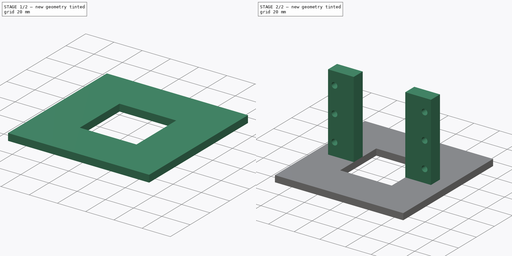
[diagram: build sequence overview — one tinted view per stage of 2, left to right]
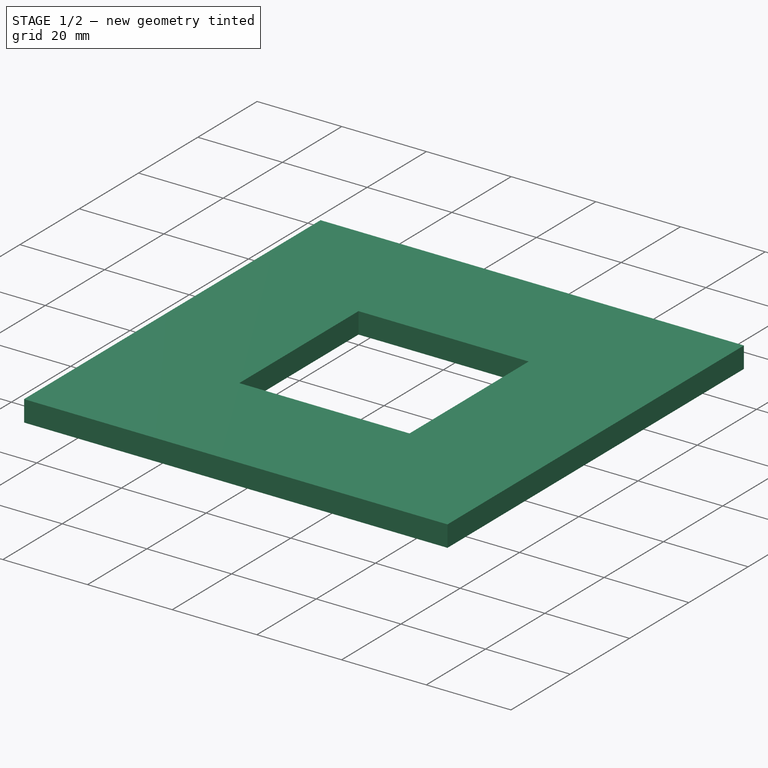
[diagram: stage 1 of 2 — iso view after this stage's code; geometry added in this stage tinted green]
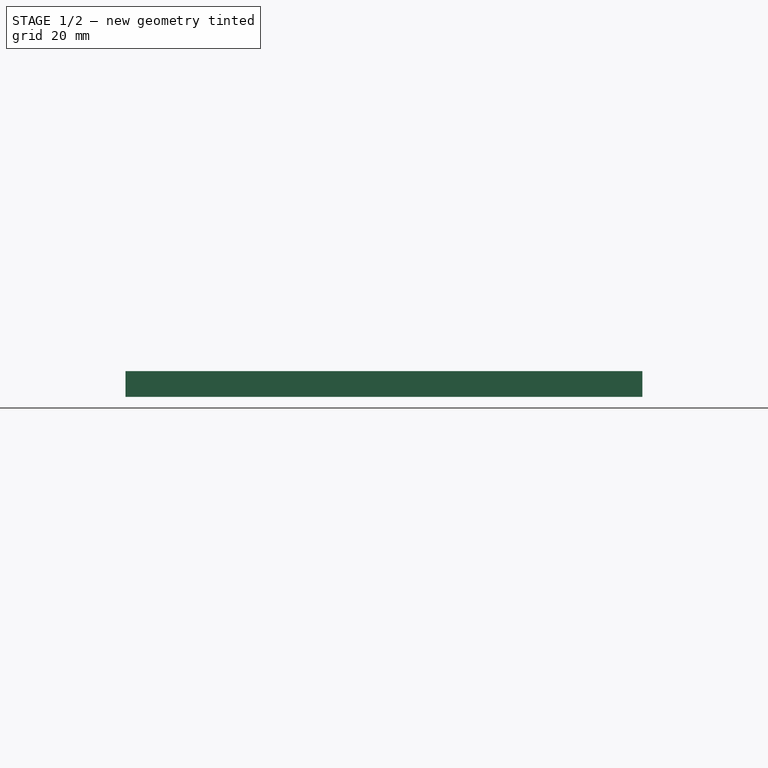
[diagram: stage 1 of 2 — front view after this stage's code; geometry added in this stage tinted green]
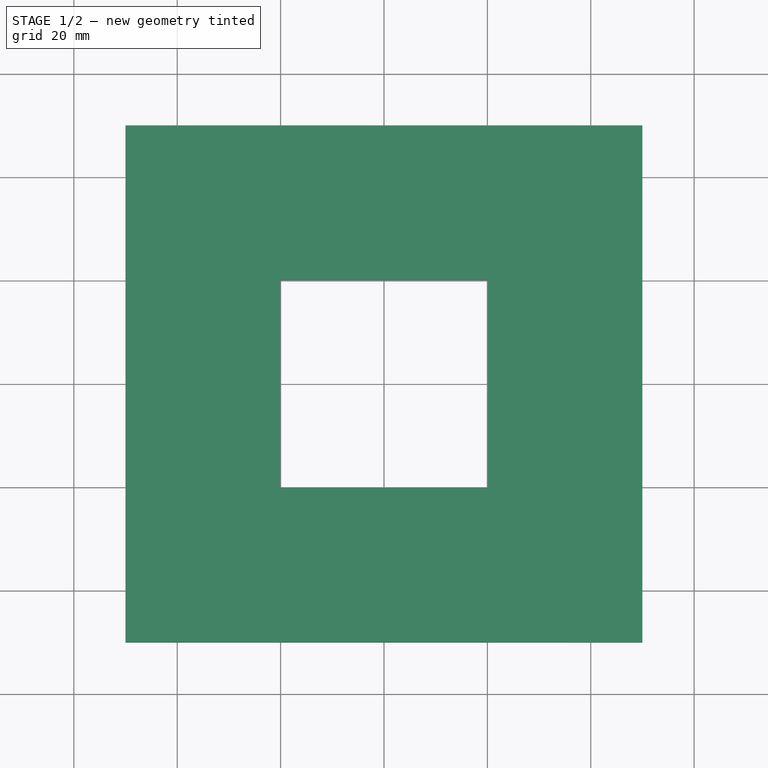
[diagram: stage 1 of 2 — top view after this stage's code; geometry added in this stage tinted green]
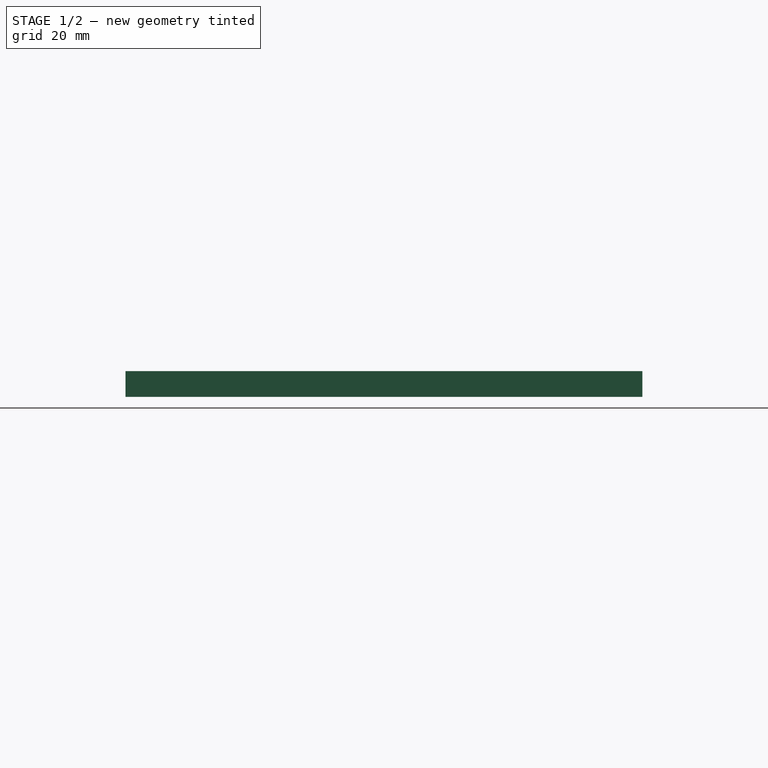
[diagram: stage 1 of 2 — right view after this stage's code; geometry added in this stage tinted green]
FCSTD DOCUMENT  (FreeCAD 0.20R29603 (Git))
Label: alu_profile_sanding_holder
License: All rights reserved
LicenseURL: http://en.wikipedia.org/wiki/All_rights_reserved
objects: Sketcher::SketchObject×4, PartDesign::Pad×2, PartDesign::Plane×2, PartDesign::Pocket×2, Spreadsheet::Sheet×1, PartDesign::Body×1
note: 15 computed .brp shape members not serialized (recipe doc carries the construction recipe); baked Part::Feature solids carry a one-line shape summary decoded from their .brp

FEATURE [Spreadsheet::Sheet] Spreadsheet
  cells = C1=Calculated; A2=Holder dimensions; B2(holder_size)=100; A3=Holder thickness; B3(holder_thickness)=5; A4=Beam dimensions; B4(beam_size)=40; C4(beam_dimensions)==beam_size + beam_inaccuracy; A8=Beam inaccuracy; B8(beam_inaccuracy)=0.2; A9=Lip Distance; C9(lip_distance)=10; A10=Lip width; C10(lip_width)=10; A11=Lip depth; C11(lip_depth)=10; A12=Lip height; C12(lip_height)=60; A13=Lip Hole diameter; C13(lip_hole_diameter)=4.5; A14=Lip hole spacing; C14(lip_hole_spacing)=20
FEATURE [Sketcher::SketchObject] Sketch
  FullyConstrained = true
  MapMode = 5
  Support = -> [XY_Plane]
  expr: Constraints[10] = Spreadsheet.holder_size
  sketch-geometry (4):
    g0: LineSegment StartX=-50 StartY=50 StartZ=0 EndX=50 EndY=50 EndZ=0
    g1: LineSegment StartX=50 StartY=50 StartZ=0 EndX=50 EndY=-50 EndZ=0
    g2: LineSegment StartX=50 StartY=-50 StartZ=0 EndX=-50 EndY=-50 EndZ=0
    g3: LineSegment StartX=-50 StartY=-50 StartZ=0 EndX=-50 EndY=50 EndZ=0
  constraints (11):
    c: Coincident(g0,g1)
    c: Coincident(g1,g2)
    c: Coincident(g2,g3)
    c: Coincident(g3,g0)
    c: Horizontal(g0)
    c: Horizontal(g2)
    c: Vertical(g1)
    c: Vertical(g3)
    c: Symmetric(g0,g2,g-1)
    c: Equal(g0,g3)
    c: Distance(g0) = 100
FEATURE [PartDesign::Pad] Pad  label="holder_body"
  Direction = (0,0,1)
  Length = 5
  Length2 = 10
  Profile = -> Sketch
  ReferenceAxis = -> Sketch [N_Axis]
  Type = 0
  expr: Length = Spreadsheet.holder_thickness
FEATURE [PartDesign::Plane] DatumPlane  label="top_plane"
  AttachmentOffset = pos=(0,0,5) rot=(0,0,1;0rad)
  Length = 120
  MapMode = 5
  Placement = pos=(0,0,5) rot=(0,0,1;0rad)
  ResizeMode = 0
  Support = -> [XY_Plane]
  Width = 120
  expr: .AttachmentOffset.Base.z = Spreadsheet.holder_thickness
FEATURE [Sketcher::SketchObject] Sketch001
  FullyConstrained = true
  MapMode = 5
  Placement = pos=(0,0,5) rot=(0,0,1;0rad)
  Support = -> [DatumPlane]
  expr: Constraints[10] = Spreadsheet.beam_dimensions
  sketch-geometry (4):
    g0: LineSegment StartX=-20.1 StartY=20.1 StartZ=0 EndX=20.1 EndY=20.1 EndZ=0
    g1: LineSegment StartX=20.1 StartY=20.1 StartZ=0 EndX=20.1 EndY=-20.1 EndZ=0
    g2: LineSegment StartX=20.1 StartY=-20.1 StartZ=0 EndX=-20.1 EndY=-20.1 EndZ=0
    g3: LineSegment StartX=-20.1 StartY=-20.1 StartZ=0 EndX=-20.1 EndY=20.1 EndZ=0
  constraints (11):
    c: Coincident(g0,g1)
    c: Coincident(g1,g2)
    c: Coincident(g2,g3)
    c: Coincident(g3,g0)
    c: Horizontal(g0)
    c: Horizontal(g2)
    c: Vertical(g1)
    c: Vertical(g3)
    c: Symmetric(g0,g2,g-1)
    c: Equal(g0,g3)
    c: Distance(g0) = 40.2
FEATURE [PartDesign::Pocket] Pocket  label="beam_hole"
  BaseFeature = -> Pad
  Direction = (0,0,-1)
  Length = 5
  Length2 = 5
  Profile = -> Sketch001
  ReferenceAxis = -> Sketch001 [N_Axis]
  Type = 0
  expr: Length = Spreadsheet.holder_thickness
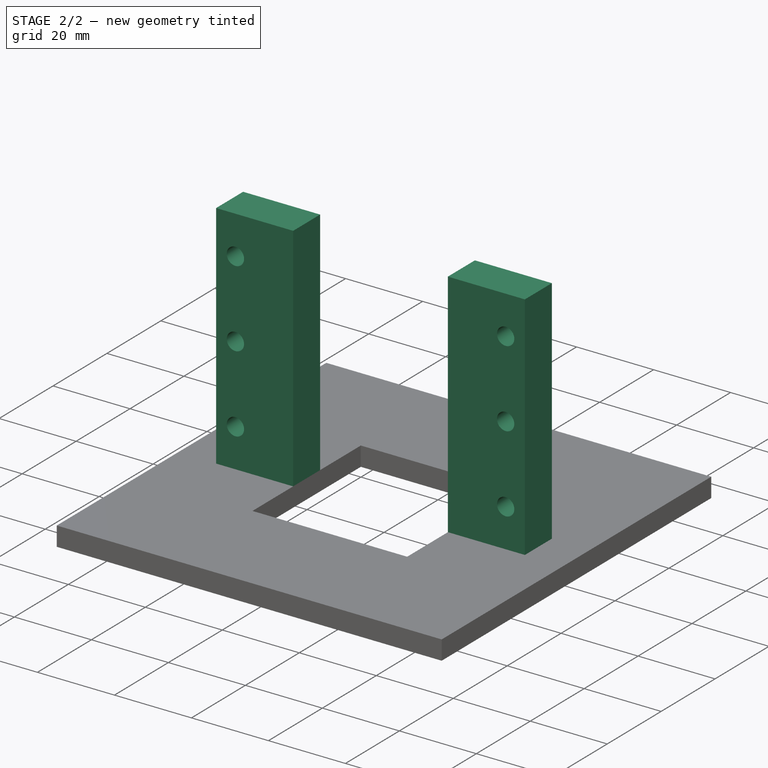
[diagram: stage 2 of 2 — iso view after this stage's code; geometry added in this stage tinted green]
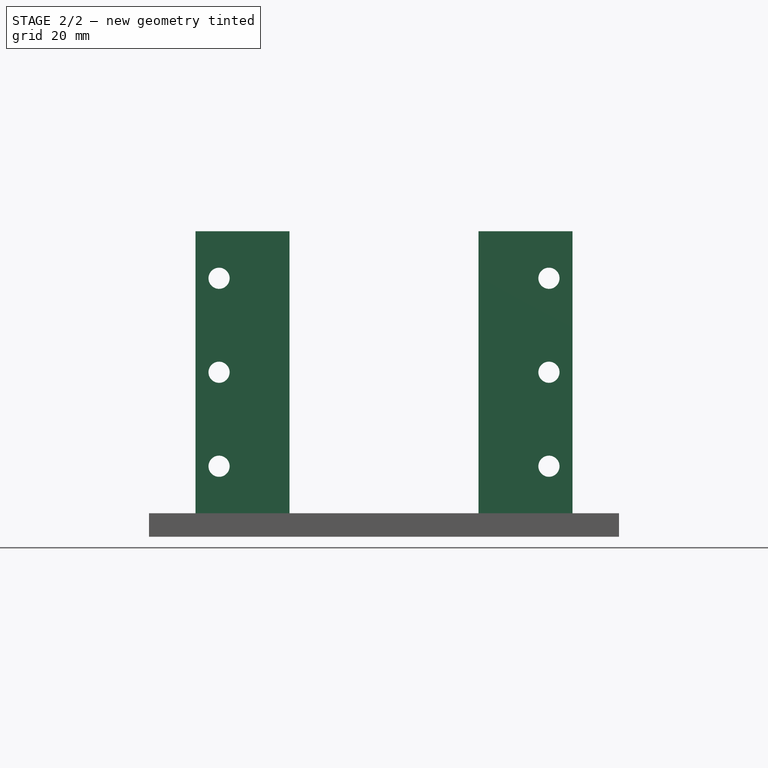
[diagram: stage 2 of 2 — front view after this stage's code; geometry added in this stage tinted green]
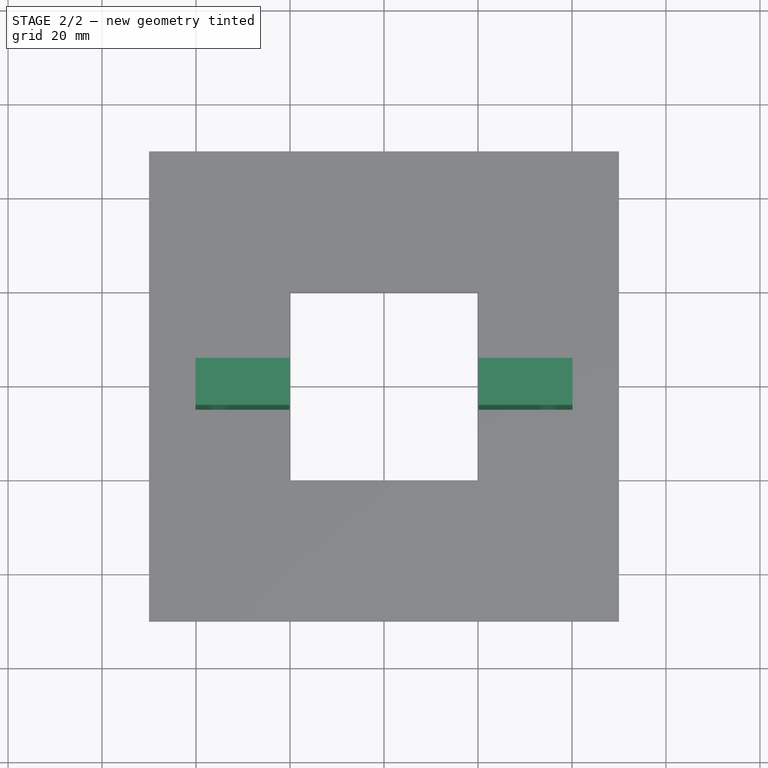
[diagram: stage 2 of 2 — top view after this stage's code; geometry added in this stage tinted green]
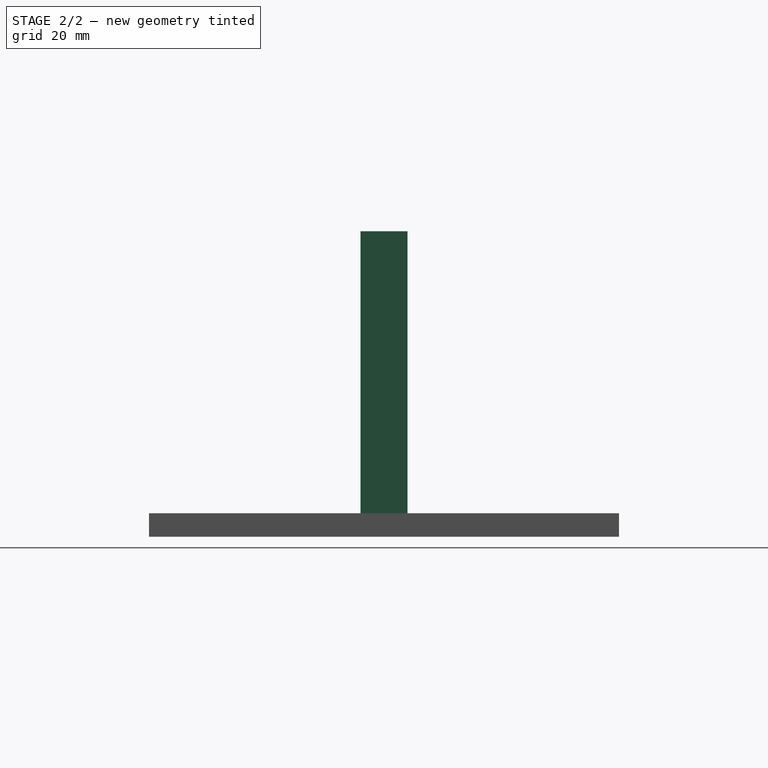
[diagram: stage 2 of 2 — right view after this stage's code; geometry added in this stage tinted green]
FEATURE [Sketcher::SketchObject] Sketch002
  FullyConstrained = true
  MapMode = 5
  Placement = pos=(0,0,5) rot=(0,0,1;0rad)
  Support = -> [DatumPlane]
  expr: Constraints[10] = Spreadsheet.beam_dimensions
  expr: Constraints[21] = Spreadsheet.lip_width + Spreadsheet.lip_distance
  expr: Constraints[33] = Spreadsheet.lip_depth
  expr: Constraints[45] = Spreadsheet.lip_depth
  sketch-geometry (18):
    g0: LineSegment StartX=-20.1 StartY=20.1 StartZ=0 EndX=20.1 EndY=20.1 EndZ=0
    g1: LineSegment StartX=20.1 StartY=20.1 StartZ=0 EndX=20.1 EndY=-20.1 EndZ=0
    g2: LineSegment StartX=20.1 StartY=-20.1 StartZ=0 EndX=-20.1 EndY=-20.1 EndZ=0
    g3: LineSegment StartX=-20.1 StartY=-20.1 StartZ=0 EndX=-20.1 EndY=20.1 EndZ=0
    g4: LineSegment StartX=-40.1 StartY=40.1 StartZ=0 EndX=40.1 EndY=40.1 EndZ=0
    g5: LineSegment StartX=40.1 StartY=40.1 StartZ=0 EndX=40.1 EndY=-40.1 EndZ=0
    g6: LineSegment StartX=40.1 StartY=-40.1 StartZ=0 EndX=-40.1 EndY=-40.1 EndZ=0
    g7: LineSegment StartX=-40.1 StartY=-40.1 StartZ=0 EndX=-40.1 EndY=40.1 EndZ=0
    g8: LineSegment StartX=-40.1 StartY=5 StartZ=0 EndX=-20.1 EndY=5 EndZ=0
    g9: LineSegment StartX=-20.1 StartY=5 StartZ=0 EndX=-20.1 EndY=-5 EndZ=0
    g10: LineSegment StartX=-20.1 StartY=-5 StartZ=0 EndX=-40.1 EndY=-5 EndZ=0
    g11: LineSegment StartX=-40.1 StartY=-5 StartZ=0 EndX=-40.1 EndY=5 EndZ=0
    g12: GeomPoint X=-40.1 Y=2e-15 Z=0
    g13: GeomPoint X=40.1 Y=2e-15 Z=0
    g14: LineSegment StartX=20.1 StartY=5 StartZ=0 EndX=40.1 EndY=5 EndZ=0
    g15: LineSegment StartX=40.1 StartY=5 StartZ=0 EndX=40.1 EndY=-5 EndZ=0
    g16: LineSegment StartX=40.1 StartY=-5 StartZ=0 EndX=20.1 EndY=-5 EndZ=0
    g17: LineSegment StartX=20.1 StartY=-5 StartZ=0 EndX=20.1 EndY=5 EndZ=0
  constraints (46):
    c: Coincident(g0,g1)
    c: Coincident(g1,g2)
    c: Coincident(g2,g3)
    c: Coincident(g3,g0)
    c: Horizontal(g0)
    c: Horizontal(g2)
    c: Vertical(g1)
    c: Vertical(g3)
    c: Symmetric(g0,g2,g-1)
    c: Equal(g0,g3)
    c: Distance(g0) = 40.2
    c: Coincident(g4,g5)
    c: Coincident(g5,g6)
    c: Coincident(g6,g7)
    c: Coincident(g7,g4)
    c: Horizontal(g4)
    c: Horizontal(g6)
    c: Vertical(g5)
    c: Vertical(g7)
    c: Symmetric(g4,g6,g-1)
    c: Equal(g4,g7)
    c: Distance(g0,g7) = 20
    c: Coincident(g8,g9)
    c: Coincident(g9,g10)
    c: Coincident(g10,g11)
    c: Coincident(g11,g8)
    c: Horizontal(g8)
    c: Horizontal(g10)
    c: Vertical(g9)
    c: Vertical(g11)
    c: PointOnObject(g9,g3)
    c: Symmetric(g6,g4,g12)
    c: Symmetric(g10,g8,g12)
    c: Distance(g11) = 10
    c: Symmetric(g4,g5,g13)
    c: Coincident(g14,g15)
    c: Coincident(g15,g16)
    c: Coincident(g16,g17)
    c: Coincident(g17,g14)
    c: Horizontal(g14)
    c: Horizontal(g16)
    c: Vertical(g15)
    c: Vertical(g17)
    c: PointOnObject(g14,g1)
    c: Symmetric(g14,g15,g13)
    c: Distance(g15) = 10
FEATURE [PartDesign::Pad] Pad001  label="clamp_lips"
  BaseFeature = -> Pocket
  Direction = (0,0,1)
  Length = 60
  Length2 = 10
  Profile = -> Sketch002
  ReferenceAxis = -> Sketch002 [N_Axis]
  Type = 0
  expr: Length = Spreadsheet.lip_height
FEATURE [PartDesign::Plane] DatumPlane001  label="clamp_lips_plane"
  AttachmentOffset = pos=(0,0,5) rot=(0,0,1;0rad)
  Length = 118.974
  MapMode = 5
  Placement = pos=(0,-5,-1.1e-15) rot=(1,0,0;1.5708rad)
  ResizeMode = 0
  Support = -> [XZ_Plane]
  Width = 108.974
  expr: .AttachmentOffset.Base.z = Spreadsheet.lip_depth / 2
FEATURE [Sketcher::SketchObject] Sketch003
  FullyConstrained = true
  MapMode = 5
  Placement = pos=(0,-5,-1.1e-15) rot=(1,0,0;1.5708rad)
  Support = -> [DatumPlane001]
  expr: Constraints[17] = Spreadsheet.holder_thickness + Spreadsheet.lip_hole_spacing / 2
  expr: Constraints[18] = Spreadsheet.beam_dimensions / 2 + Spreadsheet.lip_width / 2 + Spreadsheet.lip_distance
  expr: Constraints[1] = Spreadsheet.lip_hole_diameter
  expr: Constraints[21] = Spreadsheet.lip_hole_spacing
  sketch-geometry (16):
    g0: Circle CenterX=-35.1 CenterY=15 CenterZ=0 NormalX=0 NormalY=0 NormalZ=1 AngleXU=0 Radius=2.25
    g1: Circle CenterX=35.1 CenterY=15 CenterZ=0 NormalX=0 NormalY=0 NormalZ=1 AngleXU=0 Radius=2.25
    g2: LineSegment StartX=-35.1 StartY=0 StartZ=0 EndX=-35.1 EndY=15 EndZ=0
    g3: LineSegment StartX=-35.1 StartY=15 StartZ=0 EndX=-35.1 EndY=35 EndZ=0
    g4: LineSegment StartX=-35.1 StartY=35 StartZ=0 EndX=-35.1 EndY=55 EndZ=0
    g5: LineSegment StartX=-35.1 StartY=55 StartZ=0 EndX=-35.1 EndY=75 EndZ=0
    g6: LineSegment StartX=35.1 StartY=0 StartZ=0 EndX=35.1 EndY=15 EndZ=0
    g7: LineSegment StartX=35.1 StartY=15 StartZ=0 EndX=35.1 EndY=35 EndZ=0
    g8: LineSegment StartX=35.1 StartY=35 StartZ=0 EndX=35.1 EndY=55 EndZ=0
    g9: LineSegment StartX=35.1 StartY=55 StartZ=0 EndX=35.1 EndY=75 EndZ=0
    g10: Circle CenterX=-35.1 CenterY=35 CenterZ=0 NormalX=0 NormalY=0 NormalZ=1 AngleXU=0 Radius=2.25
    g11: Circle CenterX=-35.1 CenterY=55 CenterZ=0 NormalX=0 NormalY=0 NormalZ=1 AngleXU=0 Radius=2.25
    g12: Circle CenterX=-35.1 CenterY=75 CenterZ=0 NormalX=0 NormalY=0 NormalZ=1 AngleXU=0 Radius=2.25
    g13: Circle CenterX=35.1 CenterY=75 CenterZ=0 NormalX=0 NormalY=0 NormalZ=1 AngleXU=0 Radius=2.25
    g14: Circle CenterX=35.1 CenterY=55 CenterZ=0 NormalX=0 NormalY=0 NormalZ=1 AngleXU=0 Radius=2.25
    g15: Circle CenterX=35.1 CenterY=35 CenterZ=0 NormalX=0 NormalY=0 NormalZ=1 AngleXU=0 Radius=2.25
  constraints (41):
    c: Equal(g1,g0)
    c: Diameter(g1) = 4.5
    c: PointOnObject(g2,g-1)
    c: Vertical(g2)
    c: Coincident(g2,g3)
    c: Vertical(g3)
    c: Coincident(g3,g4)
    c: Vertical(g4)
    c: Coincident(g4,g5)
    c: Vertical(g5)
    c: Vertical(g6)
    c: Coincident(g6,g7)
    c: Vertical(g7)
    c: Coincident(g7,g8)
    c: Vertical(g8)
    c: Coincident(g8,g9)
    c: Vertical(g9)
    c: Distance(g6) = 15
    c: DistanceX(g-2,g6) = 35.1
    c: Symmetric(g6,g2,g-1)
    c: Equal(g6,g2)
    c: Distance(g7) = 20
    c: Equal(g7,g3)
    c: Equal(g7,g8)
    c: Equal(g7,g4)
    c: Equal(g7,g5)
    c: Equal(g7,g9)
    c: Coincident(g1,g6)
    c: Coincident(g0,g2)
    c: Coincident(g10,g3)
    c: Coincident(g11,g4)
    c: Coincident(g12,g5)
    c: Coincident(g13,g9)
    c: Coincident(g14,g8)
    c: Coincident(g15,g7)
    c: Equal(g1,g10)
    c: Equal(g1,g15)
    c: Equal(g1,g14)
    c: Equal(g1,g13)
    c: Equal(g1,g11)
    c: Equal(g1,g12)
FEATURE [PartDesign::Pocket] Pocket001  label="lip_holes"
  BaseFeature = -> Pad001
  Direction = (0,1,2e-16)
  Length = 10
  Length2 = 5
  Profile = -> Sketch003
  ReferenceAxis = -> Sketch003 [N_Axis]
  Type = 0
  expr: Length = Spreadsheet.lip_depth
FEATURE [PartDesign::Body] Body  label="sanding_holder"
  Group = -> [Sketch,Pad,DatumPlane,Sketch001,Pocket,Sketch002,Pad001,DatumPlane001,Sketch003,Pocket001]
  Origin = -> Origin
  Tip = -> Pocket001
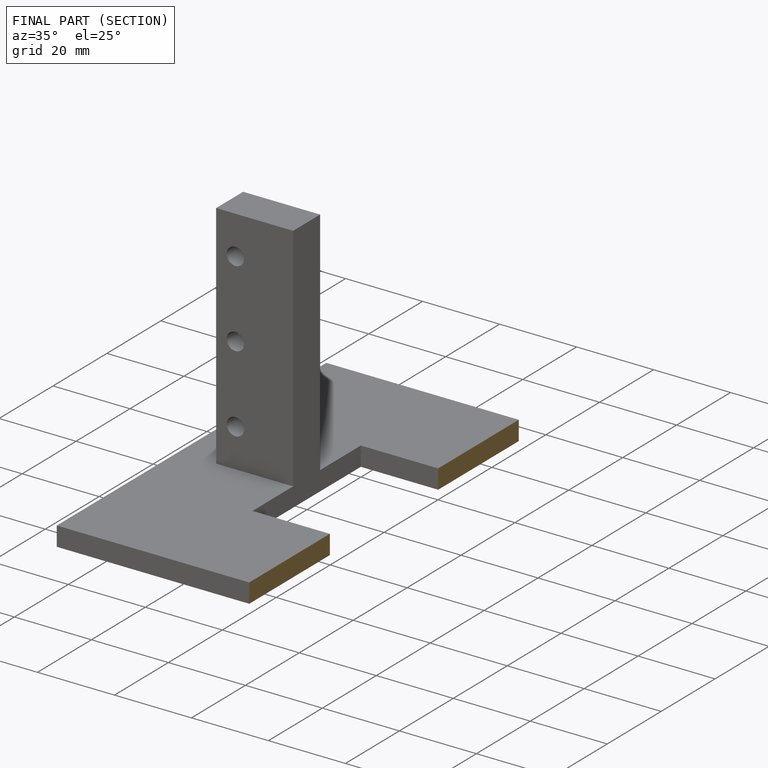
[diagram: finished part — half-section view (interior)]
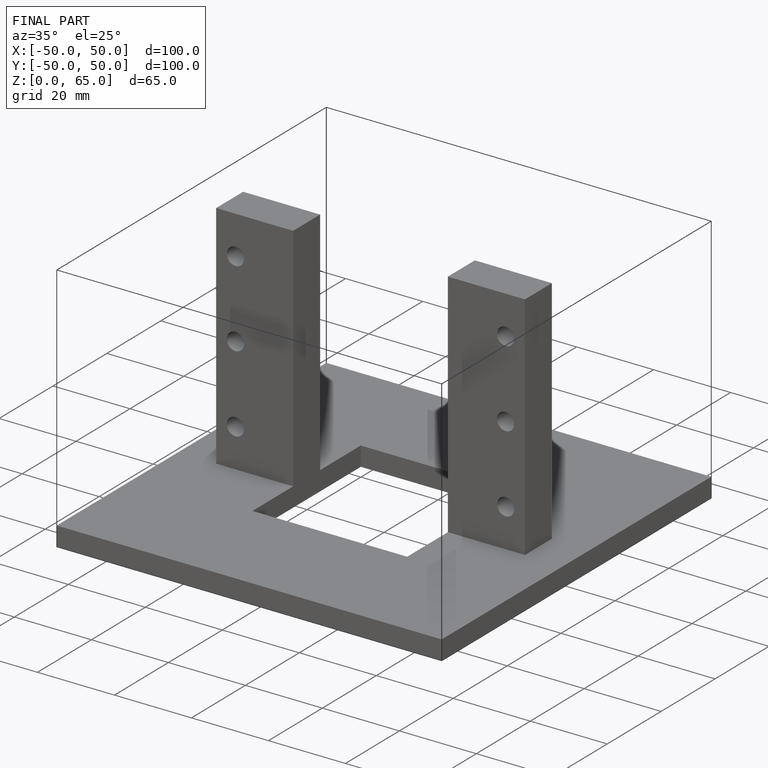
[diagram: finished part — iso view with bounding-box wireframe]
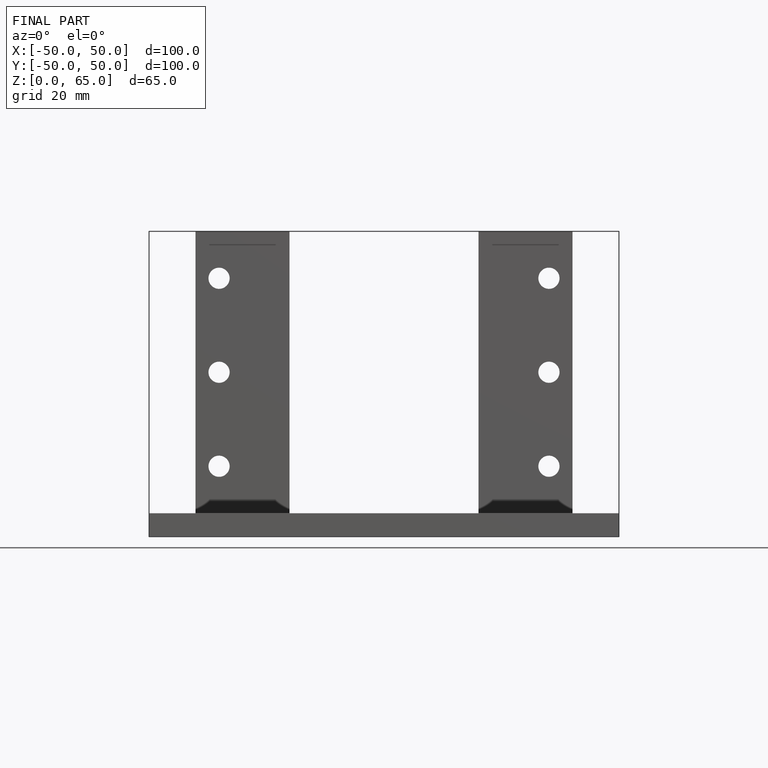
[diagram: finished part — front view with bounding-box wireframe]
